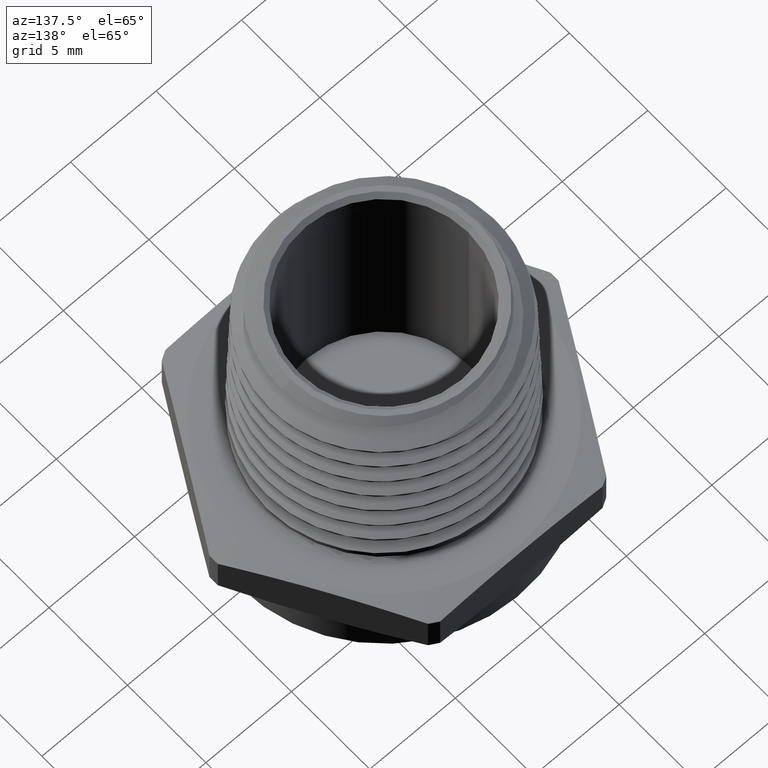
[diagram: clean part render]
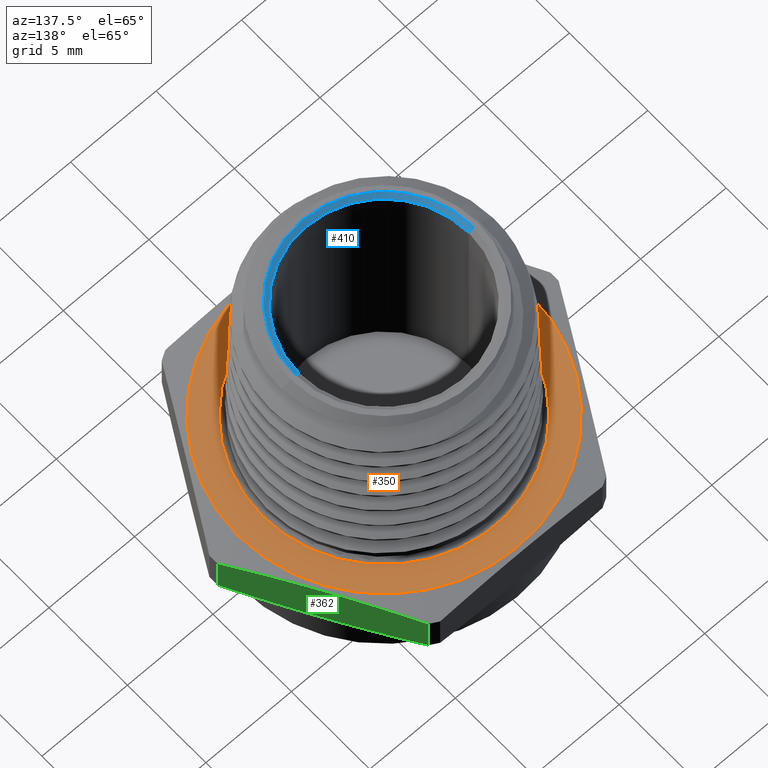
[diagram: same view with three faces highlighted in distinct colors, each labeled with its STEP entity id]
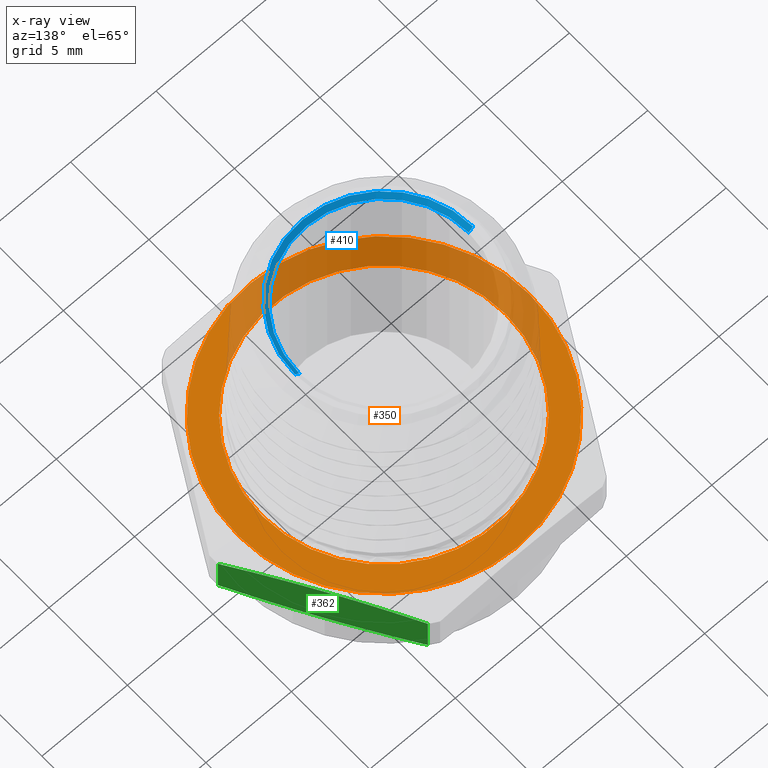
[diagram: x-ray of the same camera — body ghosted, the three highlighted faces saturated]
A machine part, auxiliary view with three faces highlighted in distinct colors.
The next image is the same camera in x-ray (body ghosted, the three faces saturated) — at least one of them is partly hidden behind the body in this view.
Their STEP definitions:

[orange] entity #350 — the highlighted planar face has unit normal (-0, 0, 1).
#350 = ADVANCED_FACE ( 'NONE', ( #973, #972 ), #5057, .T. ) ;
#428 = ORIENTED_EDGE ( 'NONE', *, *, #486, .T. ) ;
#430 = ORIENTED_EDGE ( 'NONE', *, *, #563, .F. ) ;
#446 = ORIENTED_EDGE ( 'NONE', *, *, #547, .T. ) ;
#453 = ORIENTED_EDGE ( 'NONE', *, *, #485, .F. ) ;
#485 = EDGE_CURVE ( 'NONE', #885, #881, #1107, .T. ) ;
#486 = EDGE_CURVE ( 'NONE', #879, #878, #1106, .T. ) ;
#547 = EDGE_CURVE ( 'NONE', #878, #879, #1183, .T. ) ;
#563 = EDGE_CURVE ( 'NONE', #881, #885, #1199, .T. ) ;
#605 = AXIS2_PLACEMENT_3D ( 'NONE', #5055, #5054, #5059 ) ;
#679 = AXIS2_PLACEMENT_3D ( 'NONE', #3026, #3027, #3028 ) ;
#680 = AXIS2_PLACEMENT_3D ( 'NONE', #3029, #3030, #3031 ) ;
#878 = VERTEX_POINT ( 'NONE', #4152 ) ;
#879 = VERTEX_POINT ( 'NONE', #4153 ) ;
#881 = VERTEX_POINT ( 'NONE', #4155 ) ;
#885 = VERTEX_POINT ( 'NONE', #4159 ) ;
#972 = FACE_BOUND ( 'NONE', #4585, .T. ) ;
#973 = FACE_OUTER_BOUND ( 'NONE', #4590, .T. ) ;
#1106 = CIRCLE ( 'NONE', #680, 0.2800000000000000300 ) ;
#1107 = CIRCLE ( 'NONE', #679, 0.3350000000000000200 ) ;
#1183 = CIRCLE ( 'NONE', #3861, 0.2800000000000000300 ) ;
#1199 = CIRCLE ( 'NONE', #3872, 0.3350000000000000200 ) ;
#3026 = CARTESIAN_POINT ( 'NONE',  ( 1.347111479062086200E-017, 0.0000000000000000000, 0.1099999999999999700 ) ) ;
#3027 = DIRECTION ( 'NONE',  ( -1.224646799147351200E-016, -0.0000000000000000000, -1.000000000000000000 ) ) ;
#3028 = DIRECTION ( 'NONE',  ( -1.000000000000000000, 0.0000000000000000000, 1.019346266292635500E-016 ) ) ;
#3029 = CARTESIAN_POINT ( 'NONE',  ( 0.0000000000000000000, 0.0000000000000000000, 0.1100000000000000000 ) ) ;
#3030 = DIRECTION ( 'NONE',  ( 0.0000000000000000000, -0.0000000000000000000, -1.000000000000000000 ) ) ;
#3031 = DIRECTION ( 'NONE',  ( 1.000000000000000000, 0.0000000000000000000, 0.0000000000000000000 ) ) ;
#3730 = CARTESIAN_POINT ( 'NONE',  ( 0.0000000000000000000, 0.0000000000000000000, 0.1100000000000000000 ) ) ;
#3731 = DIRECTION ( 'NONE',  ( 0.0000000000000000000, -0.0000000000000000000, -1.000000000000000000 ) ) ;
#3732 = DIRECTION ( 'NONE',  ( 1.000000000000000000, 0.0000000000000000000, 0.0000000000000000000 ) ) ;
#3787 = CARTESIAN_POINT ( 'NONE',  ( 1.347111479062086200E-017, 0.0000000000000000000, 0.1099999999999999700 ) ) ;
#3788 = DIRECTION ( 'NONE',  ( -1.224646799147351200E-016, -0.0000000000000000000, -1.000000000000000000 ) ) ;
#3789 = DIRECTION ( 'NONE',  ( -1.000000000000000000, 0.0000000000000000000, 1.019346266292635500E-016 ) ) ;
#3861 = AXIS2_PLACEMENT_3D ( 'NONE', #3730, #3731, #3732 ) ;
#3872 = AXIS2_PLACEMENT_3D ( 'NONE', #3787, #3788, #3789 ) ;
#4152 = CARTESIAN_POINT ( 'NONE',  ( 0.2800000000000000300, 0.0000000000000000000, 0.1100000000000000300 ) ) ;
#4153 = CARTESIAN_POINT ( 'NONE',  ( -0.2800000000000000300, 3.429011037612588800E-017, 0.1100000000000000300 ) ) ;
#4155 = CARTESIAN_POINT ( 'NONE',  ( -0.3350000000000000200, 0.0000000000000000000, 0.1100000000000000000 ) ) ;
#4159 = CARTESIAN_POINT ( 'NONE',  ( 0.3350000000000000200, 4.102566777143634000E-017, 0.1099999999999999300 ) ) ;
#4585 = EDGE_LOOP ( 'NONE', ( #446, #428 ) ) ;
#4590 = EDGE_LOOP ( 'NONE', ( #430, #453 ) ) ;
#5054 = DIRECTION ( 'NONE',  ( -0.0000000000000000000, 0.0000000000000000000, 1.000000000000000000 ) ) ;
#5055 = CARTESIAN_POINT ( 'NONE',  ( -0.1991858428704206800, -0.3449999999999998100, 0.1100000000000000000 ) ) ;
#5057 = PLANE ( 'NONE',  #605 ) ;
#5059 = DIRECTION ( 'NONE',  ( 1.000000000000000000, 0.0000000000000000000, 0.0000000000000000000 ) ) ;

[blue] entity #410 — the highlighted conical surface has half-angle 45 deg.
#38 = EDGE_LOOP ( 'NONE', ( #737, #735, #738, #739 ) ) ;
#410 = ADVANCED_FACE ( 'NONE', ( #1099 ), #1103, .F. ) ;
#530 = EDGE_CURVE ( 'NONE', #870, #864, #1161, .T. ) ;
#531 = EDGE_CURVE ( 'NONE', #1273, #870, #1158, .T. ) ;
#532 = EDGE_CURVE ( 'NONE', #868, #864, #1164, .T. ) ;
#533 = EDGE_CURVE ( 'NONE', #1273, #868, #1165, .T. ) ;
#676 = AXIS2_PLACEMENT_3D ( 'NONE', #2742, #2743, #2740 ) ;
#698 = AXIS2_PLACEMENT_3D ( 'NONE', #3691, #3692, #3693 ) ;
#699 = AXIS2_PLACEMENT_3D ( 'NONE', #3695, #3696, #3697 ) ;
#735 = ORIENTED_EDGE ( 'NONE', *, *, #530, .T. ) ;
#737 = ORIENTED_EDGE ( 'NONE', *, *, #531, .T. ) ;
#738 = ORIENTED_EDGE ( 'NONE', *, *, #532, .F. ) ;
#739 = ORIENTED_EDGE ( 'NONE', *, *, #533, .F. ) ;
#864 = VERTEX_POINT ( 'NONE', #4141 ) ;
#868 = VERTEX_POINT ( 'NONE', #4135 ) ;
#870 = VERTEX_POINT ( 'NONE', #4136 ) ;
#1099 = FACE_OUTER_BOUND ( 'NONE', #38, .T. ) ;
#1103 = CONICAL_SURFACE ( 'NONE', #676, 0.1949999999999999800, 0.7853981633974380600 ) ;
#1158 = CIRCLE ( 'NONE', #698, 0.1949999999999999800 ) ;
#1161 = LINE ( 'NONE', #3681, #1163 ) ;
#1163 = VECTOR ( 'NONE', #3682, 39.37007874015748100 ) ;
#1164 = CIRCLE ( 'NONE', #699, 0.2049999999999997900 ) ;
#1165 = LINE ( 'NONE', #3689, #1167 ) ;
#1167 = VECTOR ( 'NONE', #3690, 39.37007874015748900 ) ;
#1273 = VERTEX_POINT ( 'NONE', #4236 ) ;
#2740 = DIRECTION ( 'NONE',  ( 1.000000000000000000, 0.0000000000000000000, 0.0000000000000000000 ) ) ;
#2742 = CARTESIAN_POINT ( 'NONE',  ( 4.667858882292200900E-017, 0.0000000000000000000, 0.5599999999999999400 ) ) ;
#2743 = DIRECTION ( 'NONE',  ( 1.224646799147353200E-016, 0.0000000000000000000, 1.000000000000000000 ) ) ;
#3681 = CARTESIAN_POINT ( 'NONE',  ( -0.1949999999999999200, 2.388061258337338400E-017, 0.5599999999999999400 ) ) ;
#3682 = DIRECTION ( 'NONE',  ( -0.7071067811865401300, 8.659560562354844100E-017, 0.7071067811865549000 ) ) ;
#3689 = CARTESIAN_POINT ( 'NONE',  ( 0.1950000000000000100, 0.0000000000000000000, 0.5599999999999999400 ) ) ;
#3690 = DIRECTION ( 'NONE',  ( 0.7071067811865402500, 0.0000000000000000000, 0.7071067811865545700 ) ) ;
#3691 = CARTESIAN_POINT ( 'NONE',  ( 4.667858882292200900E-017, 0.0000000000000000000, 0.5599999999999999400 ) ) ;
#3692 = DIRECTION ( 'NONE',  ( -1.224646799147353200E-016, -0.0000000000000000000, -1.000000000000000000 ) ) ;
#3693 = DIRECTION ( 'NONE',  ( -1.000000000000000000, 0.0000000000000000000, 0.0000000000000000000 ) ) ;
#3695 = CARTESIAN_POINT ( 'NONE',  ( 4.790323562206936600E-017, 0.0000000000000000000, 0.5699999999999999500 ) ) ;
#3696 = DIRECTION ( 'NONE',  ( -1.224646799147353200E-016, -0.0000000000000000000, -1.000000000000000000 ) ) ;
#3697 = DIRECTION ( 'NONE',  ( -1.000000000000000000, 0.0000000000000000000, 0.0000000000000000000 ) ) ;
#4135 = CARTESIAN_POINT ( 'NONE',  ( 0.2049999999999997900, 0.0000000000000000000, 0.5699999999999999500 ) ) ;
#4136 = CARTESIAN_POINT ( 'NONE',  ( -0.1949999999999999200, 0.0000000000000000000, 0.5599999999999999400 ) ) ;
#4141 = CARTESIAN_POINT ( 'NONE',  ( -0.2049999999999997900, 2.510525938252071900E-017, 0.5699999999999999500 ) ) ;
#4236 = CARTESIAN_POINT ( 'NONE',  ( 0.1950000000000000100, 2.388061258337338700E-017, 0.5599999999999999400 ) ) ;

[green] entity #362 — the highlighted planar face has unit normal (-0.866, -0.5, 0).
#16 = ORIENTED_EDGE ( 'NONE', *, *, #508, .T. ) ;
#18 = ORIENTED_EDGE ( 'NONE', *, *, #560, .T. ) ;
#362 = ADVANCED_FACE ( 'NONE', ( #982 ), #5090, .F. ) ;
#499 = EDGE_CURVE ( 'NONE', #894, #887, #1124, .T. ) ;
#508 = EDGE_CURVE ( 'NONE', #890, #889, #1137, .T. ) ;
#560 = EDGE_CURVE ( 'NONE', #887, #890, #3248, .T. ) ;
#566 = EDGE_CURVE ( 'NONE', #889, #894, #3249, .T. ) ;
#616 = AXIS2_PLACEMENT_3D ( 'NONE', #5092, #5097, #5098 ) ;
#711 = EDGE_LOOP ( 'NONE', ( #18, #16, #1236, #1288 ) ) ;
#887 = VERTEX_POINT ( 'NONE', #4161 ) ;
#889 = VERTEX_POINT ( 'NONE', #4163 ) ;
#890 = VERTEX_POINT ( 'NONE', #4164 ) ;
#894 = VERTEX_POINT ( 'NONE', #4168 ) ;
#982 = FACE_OUTER_BOUND ( 'NONE', #711, .T. ) ;
#1124 = LINE ( 'NONE', #3062, #1127 ) ;
#1127 = VECTOR ( 'NONE', #3064, 39.37007874015748100 ) ;
#1136 = VECTOR ( 'NONE', #3097, 39.37007874015748100 ) ;
#1137 = LINE ( 'NONE', #3096, #1136 ) ;
#1236 = ORIENTED_EDGE ( 'NONE', *, *, #566, .T. ) ;
#1288 = ORIENTED_EDGE ( 'NONE', *, *, #499, .T. ) ;
#3062 = CARTESIAN_POINT ( 'NONE',  ( 0.3922273327418436800, 0.01064233157390307900, -1.144414902203096800E-017 ) ) ;
#3064 = DIRECTION ( 'NONE',  ( -1.224646799147351200E-016, -0.0000000000000000000, -1.000000000000000000 ) ) ;
#3096 = CARTESIAN_POINT ( 'NONE',  ( 0.2053301958694188900, 0.3343576684260971500, 1.144414902203096800E-017 ) ) ;
#3097 = DIRECTION ( 'NONE',  ( 1.224646799147351200E-016, 0.0000000000000000000, 1.000000000000000000 ) ) ;
#3248 = B_SPLINE_CURVE_WITH_KNOTS ( 'NONE', 3,
 ( #3779, #3774, #3775, #3780, #3781 ),
 .UNSPECIFIED., .F., .F.,
 ( 4, 1, 4 ),
 ( 1.975061655776630400E-006, 0.004749162338215362300, 0.009496349614774949100 ),
 .UNSPECIFIED. ) ;
#3249 = B_SPLINE_CURVE_WITH_KNOTS ( 'NONE', 3,
 ( #3795, #3790, #3791, #3796, #3797 ),
 .UNSPECIFIED., .F., .F.,
 ( 4, 1, 4 ),
 ( 1.975061656122140200E-006, 0.004749162338215711900, 0.009496349614775299500 ),
 .UNSPECIFIED. ) ;
#3774 = CARTESIAN_POINT ( 'NONE',  ( 0.3610778099297727900, 0.06459488771593537000, 0.005887175410780918500 ) ) ;
#3775 = CARTESIAN_POINT ( 'NONE',  ( 0.2987787643056312200, 0.1725000000000000400, -0.001636044177380880500 ) ) ;
#3779 = CARTESIAN_POINT ( 'NONE',  ( 0.3922273327418436800, 0.01064233157390307900, 0.01219472825828593400 ) ) ;
#3780 = CARTESIAN_POINT ( 'NONE',  ( 0.2364797186814897000, 0.2804051122840648400, 0.005887175410780947200 ) ) ;
#3781 = CARTESIAN_POINT ( 'NONE',  ( 0.2053301958694188900, 0.3343576684260971500, 0.01219472825828586000 ) ) ;
#3790 = CARTESIAN_POINT ( 'NONE',  ( 0.2364797186814896800, 0.2804051122840648400, 0.1041128245892189000 ) ) ;
#3791 = CARTESIAN_POINT ( 'NONE',  ( 0.2987787643056312200, 0.1725000000000000400, 0.1116360441773807200 ) ) ;
#3795 = CARTESIAN_POINT ( 'NONE',  ( 0.2053301958694188900, 0.3343576684260971500, 0.09780527174171399500 ) ) ;
#3796 = CARTESIAN_POINT ( 'NONE',  ( 0.3610778099297729000, 0.06459488771593525900, 0.1041128245892188600 ) ) ;
#3797 = CARTESIAN_POINT ( 'NONE',  ( 0.3922273327418436800, 0.01064233157390307900, 0.09780527174171395300 ) ) ;
#4161 = CARTESIAN_POINT ( 'NONE',  ( 0.3922273327418436800, 0.01064233157390307900, 0.01219472825828593400 ) ) ;
#4163 = CARTESIAN_POINT ( 'NONE',  ( 0.2053301958694188900, 0.3343576684260971500, 0.09780527174171399500 ) ) ;
#4164 = CARTESIAN_POINT ( 'NONE',  ( 0.2053301958694188900, 0.3343576684260971500, 0.01219472825828586000 ) ) ;
#4168 = CARTESIAN_POINT ( 'NONE',  ( 0.3922273327418436800, 0.01064233157390307900, 0.09780527174171395300 ) ) ;
#5090 = PLANE ( 'NONE',  #616 ) ;
#5092 = CARTESIAN_POINT ( 'NONE',  ( 0.3983716857408416400, 2.064482147124299100E-016, 0.1100000000000000000 ) ) ;
#5097 = DIRECTION ( 'NONE',  ( -0.8660254037844384900, -0.5000000000000004400, 0.0000000000000000000 ) ) ;
#5098 = DIRECTION ( 'NONE',  ( 0.5000000000000003300, -0.8660254037844383700, 0.0000000000000000000 ) ) ;